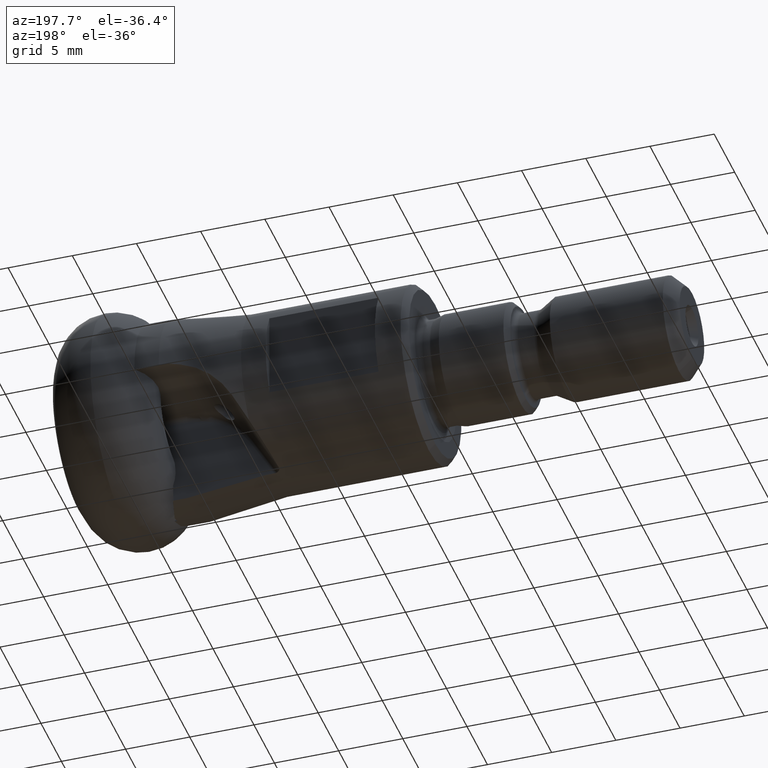
[diagram: clean part render]
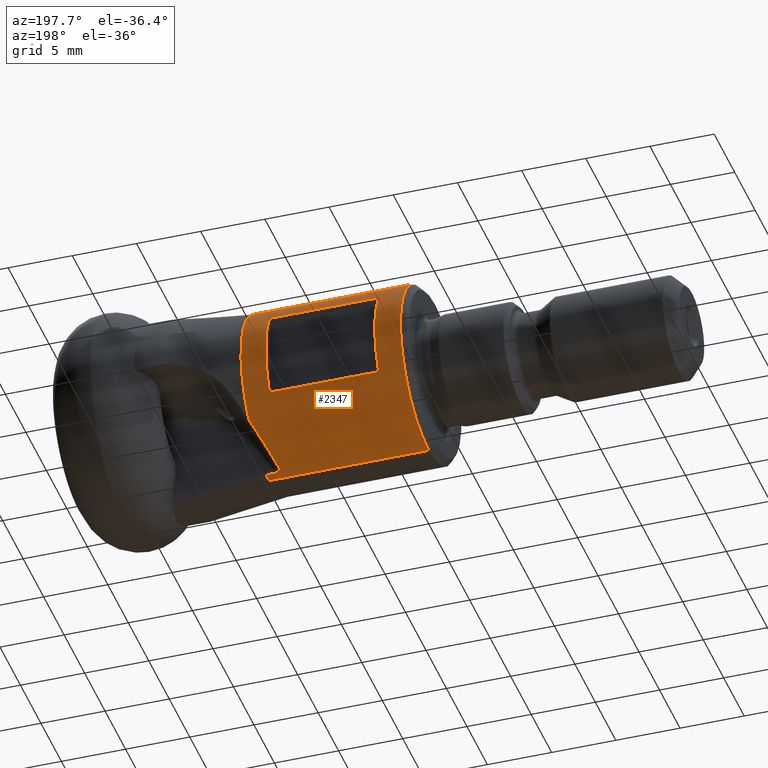
[diagram: same view with one face highlighted and labeled with its STEP entity id]
A machine part, auxiliary view. The second image highlights one B-rep face of the part: STEP entity #2347.
In plain terms, the highlighted cylindrical surface (partial cylindrical patch) has radius 6.9 mm, axis along (1, -0, -0).
Its self-contained STEP definition (entity closure, byte-faithful):
#18 = DIRECTION ( 'NONE',  ( 0.0000000000000000000, 0.0000000000000000000, -1.000000000000000000 ) ) ;
#31 = LINE ( 'NONE', #2383, #1238 ) ;
#94 = EDGE_CURVE ( 'NONE', #3075, #2684, #2980, .T. ) ;
#109 = CIRCLE ( 'NONE', #3118, 6.899999999999998600 ) ;
#143 = VERTEX_POINT ( 'NONE', #2279 ) ;
#223 = VERTEX_POINT ( 'NONE', #2340 ) ;
#268 = DIRECTION ( 'NONE',  ( 0.0000000000000000000, -1.000000000000000000, 1.776356839400250500E-015 ) ) ;
#345 = ORIENTED_EDGE ( 'NONE', *, *, #610, .F. ) ;
#404 = DIRECTION ( 'NONE',  ( 1.000000000000000000, -0.0000000000000000000, -0.0000000000000000000 ) ) ;
#437 = CARTESIAN_POINT ( 'NONE',  ( -26.60000000000000100, 8.450062914116734700E-016, 6.899999999999997700 ) ) ;
#440 = CARTESIAN_POINT ( 'NONE',  ( -15.24803329283332900, 0.9362768551555321600, -6.836477977207010800 ) ) ;
#539 = DIRECTION ( 'NONE',  ( 1.000000000000000000, 2.127998823573266400E-016, 0.0000000000000000000 ) ) ;
#573 = CARTESIAN_POINT ( 'NONE',  ( 0.0000000000000000000, 0.0000000000000000000, -6.899999999999998600 ) ) ;
#609 = CARTESIAN_POINT ( 'NONE',  ( -6.122553444624025000E-016, 6.000000000000000000, -3.407345007480160300 ) ) ;
#610 = EDGE_CURVE ( 'NONE', #2254, #2274, #2409, .T. ) ;
#684 = CARTESIAN_POINT ( 'NONE',  ( -14.76897280574238600, 0.6999999999999996200, -6.864400920692203200 ) ) ;
#701 = DIRECTION ( 'NONE',  ( -1.000000000000000000, 0.0000000000000000000, 0.0000000000000000000 ) ) ;
#708 = VECTOR ( 'NONE', #1320, 1000.000000000000000 ) ;
#710 = CARTESIAN_POINT ( 'NONE',  ( -24.60000000000000100, 6.000000000000000000, 3.407345007480160300 ) ) ;
#712 = EDGE_LOOP ( 'NONE', ( #1039, #1694, #1536, #1516, #3011, #2157, #2886, #3171 ) ) ;
#782 = VERTEX_POINT ( 'NONE', #1411 ) ;
#848 = FACE_OUTER_BOUND ( 'NONE', #712, .T. ) ;
#898 = EDGE_CURVE ( 'NONE', #143, #2254, #109, .T. ) ;
#915 = CARTESIAN_POINT ( 'NONE',  ( -14.17000000000000000, 4.958669797739759100, -4.798082308275206200 ) ) ;
#917 = DIRECTION ( 'NONE',  ( 1.000000000000000000, -0.0000000000000000000, -0.0000000000000000000 ) ) ;
#929 = VECTOR ( 'NONE', #2621, 1000.000000000000000 ) ;
#955 = CARTESIAN_POINT ( 'NONE',  ( -14.17000000000000000, 0.0000000000000000000, 0.0000000000000000000 ) ) ;
#1039 = ORIENTED_EDGE ( 'NONE', *, *, #1274, .T. ) ;
#1075 = EDGE_CURVE ( 'NONE', #2182, #223, #1728, .T. ) ;
#1156 = DIRECTION ( 'NONE',  ( 0.0000000000000000000, 0.0000000000000000000, -1.000000000000000000 ) ) ;
#1183 = CYLINDRICAL_SURFACE ( 'NONE', #2265, 6.899999999999998600 ) ;
#1184 = CARTESIAN_POINT ( 'NONE',  ( -16.10000000000000100, 0.0000000000000000000, 0.0000000000000000000 ) ) ;
#1197 = VERTEX_POINT ( 'NONE', #1641 ) ;
#1238 = VECTOR ( 'NONE', #3172, 1000.000000000000000 ) ;
#1257 = CARTESIAN_POINT ( 'NONE',  ( -14.17000000000000000, 0.6999999999999996200, -6.864400920692205000 ) ) ;
#1274 = EDGE_CURVE ( 'NONE', #2182, #2441, #2474, .T. ) ;
#1314 = ORIENTED_EDGE ( 'NONE', *, *, #2411, .F. ) ;
#1320 = DIRECTION ( 'NONE',  ( 1.000000000000000000, -0.0000000000000000000, -0.0000000000000000000 ) ) ;
#1353 = VERTEX_POINT ( 'NONE', #2609 ) ;
#1374 = DIRECTION ( 'NONE',  ( 1.000000000000000000, -0.0000000000000000000, -0.0000000000000000000 ) ) ;
#1411 = CARTESIAN_POINT ( 'NONE',  ( -16.10000000000000100, 5.999999999999998200, -3.407345007480159900 ) ) ;
#1412 = VECTOR ( 'NONE', #1374, 1000.000000000000000 ) ;
#1441 = EDGE_CURVE ( 'NONE', #2441, #2684, #31, .T. ) ;
#1516 = ORIENTED_EDGE ( 'NONE', *, *, #1552, .F. ) ;
#1525 = FACE_BOUND ( 'NONE', #2908, .T. ) ;
#1536 = ORIENTED_EDGE ( 'NONE', *, *, #94, .F. ) ;
#1552 = EDGE_CURVE ( 'NONE', #1197, #3075, #2662, .T. ) ;
#1586 = AXIS2_PLACEMENT_3D ( 'NONE', #2661, #404, #1156 ) ;
#1608 = LINE ( 'NONE', #609, #929 ) ;
#1641 = CARTESIAN_POINT ( 'NONE',  ( -15.30452766106162900, 1.199999999999999500, -6.794850991743674100 ) ) ;
#1647 = CARTESIAN_POINT ( 'NONE',  ( -26.60000000000000100, 0.0000000000000000000, -6.899999999999997700 ) ) ;
#1666 = CARTESIAN_POINT ( 'NONE',  ( -14.17000000000000000, 4.958669797739759100, -4.798082308275206200 ) ) ;
#1694 = ORIENTED_EDGE ( 'NONE', *, *, #1441, .T. ) ;
#1728 = LINE ( 'NONE', #573, #708 ) ;
#1761 = DIRECTION ( 'NONE',  ( 1.000000000000000000, -0.0000000000000000000, -0.0000000000000000000 ) ) ;
#1801 = AXIS2_PLACEMENT_3D ( 'NONE', #955, #917, #3218 ) ;
#1863 = CARTESIAN_POINT ( 'NONE',  ( -6.122553444624025000E-016, 6.000000000000000000, 3.407345007480160300 ) ) ;
#1876 = CARTESIAN_POINT ( 'NONE',  ( -16.10000000000000100, 5.999999999999998200, 3.407345007480161700 ) ) ;
#1952 = CARTESIAN_POINT ( 'NONE',  ( 0.0000000000000000000, 0.6999999999999996200, -6.864400920692203200 ) ) ;
#1960 = DIRECTION ( 'NONE',  ( 0.0000000000000000000, 1.000000000000000000, 0.0000000000000000000 ) ) ;
#1965 = LINE ( 'NONE', #1952, #2755 ) ;
#1967 = CARTESIAN_POINT ( 'NONE',  ( -15.31139833881096400, 1.131528327105479200, -6.806943384582495100 ) ) ;
#2135 = AXIS2_PLACEMENT_3D ( 'NONE', #2812, #1761, #18 ) ;
#2138 = DIRECTION ( 'NONE',  ( 0.0000000000000000000, 0.0000000000000000000, -1.000000000000000000 ) ) ;
#2157 = ORIENTED_EDGE ( 'NONE', *, *, #2224, .F. ) ;
#2165 = CARTESIAN_POINT ( 'NONE',  ( -15.30452766106162900, 1.199999999999999500, -6.794850991743674100 ) ) ;
#2182 = VERTEX_POINT ( 'NONE', #1647 ) ;
#2224 = EDGE_CURVE ( 'NONE', #2522, #1353, #1965, .T. ) ;
#2254 = VERTEX_POINT ( 'NONE', #710 ) ;
#2265 = AXIS2_PLACEMENT_3D ( 'NONE', #3177, #2420, #2138 ) ;
#2272 = CARTESIAN_POINT ( 'NONE',  ( -24.60000000000000100, 0.0000000000000000000, 0.0000000000000000000 ) ) ;
#2274 = VERTEX_POINT ( 'NONE', #1876 ) ;
#2279 = CARTESIAN_POINT ( 'NONE',  ( -24.60000000000000100, 5.999999999999997300, -3.407345007480159900 ) ) ;
#2286 = ORIENTED_EDGE ( 'NONE', *, *, #2338, .F. ) ;
#2338 = EDGE_CURVE ( 'NONE', #782, #143, #1608, .T. ) ;
#2340 = CARTESIAN_POINT ( 'NONE',  ( -14.17000000000000000, 0.0000000000000000000, -6.899999999999998600 ) ) ;
#2347 = ADVANCED_FACE ( 'NONE', ( #1525, #848 ), #1183, .T. ) ;
#2383 = CARTESIAN_POINT ( 'NONE',  ( 0.0000000000000000000, 8.450062914116734700E-016, 6.899999999999998600 ) ) ;
#2392 = AXIS2_PLACEMENT_3D ( 'NONE', #1184, #2961, #1960 ) ;
#2407 = CARTESIAN_POINT ( 'NONE',  ( -14.17000000000000000, 8.450062914116736700E-016, 6.899999999999999500 ) ) ;
#2409 = LINE ( 'NONE', #1863, #1412 ) ;
#2411 = EDGE_CURVE ( 'NONE', #2274, #782, #2728, .T. ) ;
#2420 = DIRECTION ( 'NONE',  ( 1.000000000000000000, -0.0000000000000000000, -0.0000000000000000000 ) ) ;
#2441 = VERTEX_POINT ( 'NONE', #437 ) ;
#2473 = CARTESIAN_POINT ( 'NONE',  ( -15.30452766106162900, 1.199999999999999500, -6.794850991743674100 ) ) ;
#2474 = CIRCLE ( 'NONE', #2135, 6.899999999999997700 ) ;
#2522 = VERTEX_POINT ( 'NONE', #1257 ) ;
#2575 = B_SPLINE_CURVE_WITH_KNOTS ( 'NONE', 3,
 ( #2473, #1967, #2727, #440, #3225, #2978, #3265, #684 ),
 .UNSPECIFIED., .F., .F.,
 ( 4, 2, 2, 4 ),
 ( 4.336808689942017700E-019, 0.0002066999104266473400, 0.0004133998208532939200, 0.0008267996417065912100 ),
 .UNSPECIFIED. ) ;
#2609 = CARTESIAN_POINT ( 'NONE',  ( -14.76897280574238600, 0.6999999999999996200, -6.864400920692203200 ) ) ;
#2621 = DIRECTION ( 'NONE',  ( -1.000000000000000000, 0.0000000000000000000, 0.0000000000000000000 ) ) ;
#2656 = EDGE_CURVE ( 'NONE', #223, #2522, #2907, .T. ) ;
#2661 = CARTESIAN_POINT ( 'NONE',  ( -14.17000000000000000, 0.0000000000000000000, 0.0000000000000000000 ) ) ;
#2662 =( BOUNDED_CURVE ( )  B_SPLINE_CURVE ( 3, ( #2165, #2698, #2946, #1666 ),
 .UNSPECIFIED., .F., .F. ) 
 B_SPLINE_CURVE_WITH_KNOTS ( ( 4, 4 ),
 ( 3.316394536963486800, 3.943448444371523200 ),
 .UNSPECIFIED. ) 
 CURVE ( )  GEOMETRIC_REPRESENTATION_ITEM ( )  RATIONAL_B_SPLINE_CURVE ( ( 1.000000000000000000, 0.9675011474696619800, 0.9675011474696619800, 1.000000000000000000 ) ) 
 REPRESENTATION_ITEM ( '' )  );
#2684 = VERTEX_POINT ( 'NONE', #2407 ) ;
#2698 = CARTESIAN_POINT ( 'NONE',  ( -15.15962975045093600, 2.644020910368131800, -6.539830669068858300 ) ) ;
#2727 = CARTESIAN_POINT ( 'NONE',  ( -15.30104466597626000, 1.062144169060506700, -6.818056559347917700 ) ) ;
#2728 = CIRCLE ( 'NONE', #2392, 6.899999999999998600 ) ;
#2755 = VECTOR ( 'NONE', #701, 1000.000000000000000 ) ;
#2766 = ORIENTED_EDGE ( 'NONE', *, *, #898, .F. ) ;
#2812 = CARTESIAN_POINT ( 'NONE',  ( -26.60000000000000100, 0.0000000000000000000, 0.0000000000000000000 ) ) ;
#2886 = ORIENTED_EDGE ( 'NONE', *, *, #2656, .F. ) ;
#2907 = CIRCLE ( 'NONE', #1586, 6.899999999999998600 ) ;
#2908 = EDGE_LOOP ( 'NONE', ( #2286, #1314, #345, #2766 ) ) ;
#2946 = CARTESIAN_POINT ( 'NONE',  ( -14.76875074425068800, 3.938996049009201500, -5.851883618156418400 ) ) ;
#2961 = DIRECTION ( 'NONE',  ( -1.000000000000000000, -2.127998823573266400E-016, -0.0000000000000000000 ) ) ;
#2978 = CARTESIAN_POINT ( 'NONE',  ( -15.04777263965825900, 0.7441036666017941700, -6.860365702013942800 ) ) ;
#2980 = CIRCLE ( 'NONE', #1801, 6.899999999999998600 ) ;
#3011 = ORIENTED_EDGE ( 'NONE', *, *, #3106, .T. ) ;
#3075 = VERTEX_POINT ( 'NONE', #915 ) ;
#3106 = EDGE_CURVE ( 'NONE', #1197, #1353, #2575, .T. ) ;
#3118 = AXIS2_PLACEMENT_3D ( 'NONE', #2272, #539, #268 ) ;
#3171 = ORIENTED_EDGE ( 'NONE', *, *, #1075, .F. ) ;
#3172 = DIRECTION ( 'NONE',  ( 1.000000000000000000, -0.0000000000000000000, -0.0000000000000000000 ) ) ;
#3177 = CARTESIAN_POINT ( 'NONE',  ( 0.0000000000000000000, 0.0000000000000000000, 0.0000000000000000000 ) ) ;
#3218 = DIRECTION ( 'NONE',  ( 0.0000000000000000000, 0.0000000000000000000, -1.000000000000000000 ) ) ;
#3225 = CARTESIAN_POINT ( 'NONE',  ( -15.20551302534911300, 0.8798208429133812500, -6.843828770679466300 ) ) ;
#3265 = CARTESIAN_POINT ( 'NONE',  ( -14.90830965022720100, 0.6999999999997861300, -6.864400920692225400 ) ) ;